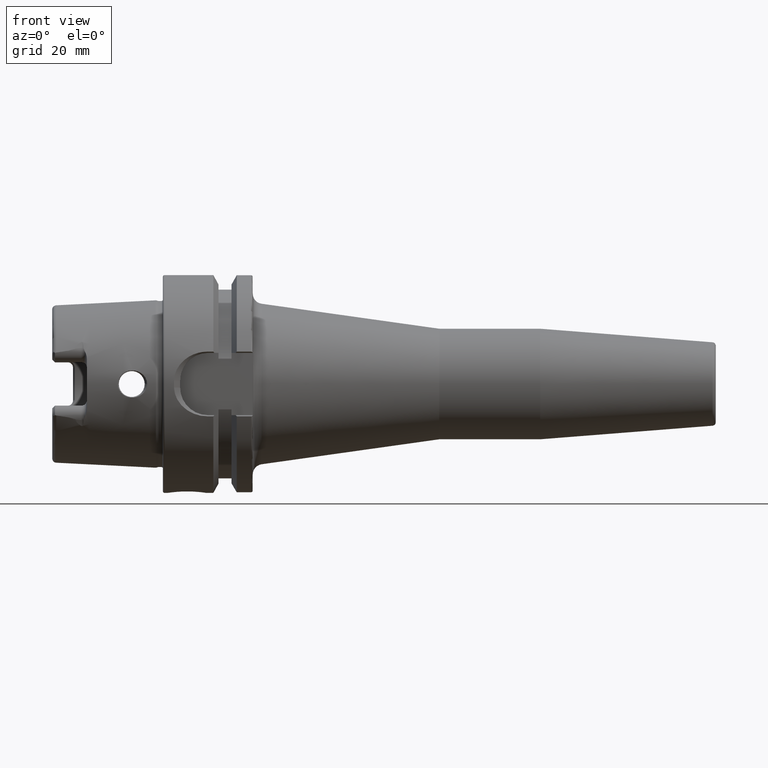
[diagram: clean part render]
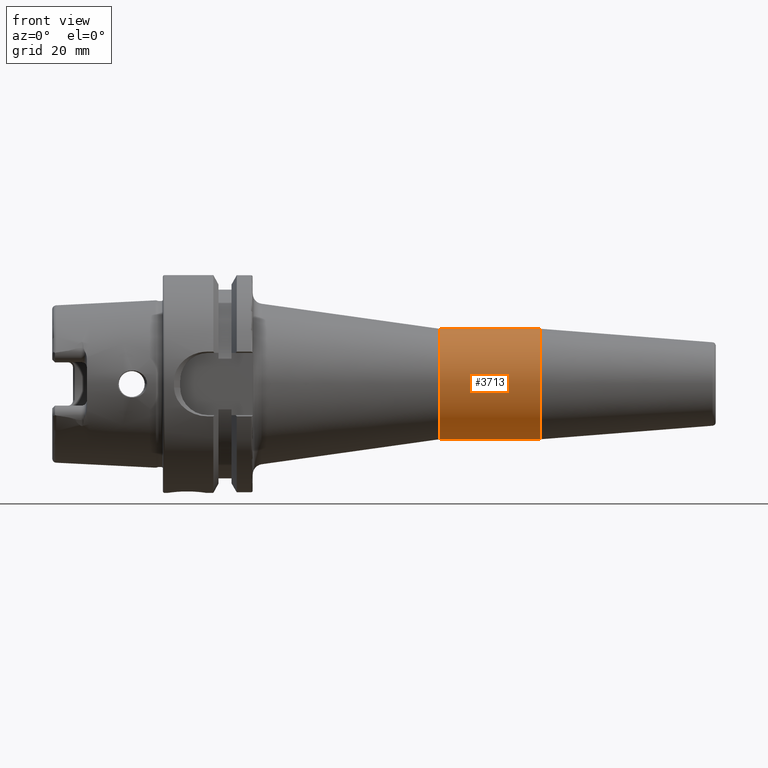
[diagram: same view with one face highlighted and labeled with its STEP entity id]
A machine part, front view. The second image highlights one B-rep face of the part: STEP entity #3713.
In plain terms, the highlighted cylindrical surface (partial cylindrical patch) has radius 16 mm, axis along (1, 0, 0).
Its self-contained STEP definition (entity closure, byte-faithful):
#607=DIRECTION('',(-1.E0,0.E0,0.E0));
#608=VECTOR('',#607,2.917518105530E1);
#609=CARTESIAN_POINT('',(1.091751810553E2,0.E0,-1.6E1));
#610=LINE('',#609,#608);
#611=DIRECTION('',(-1.E0,0.E0,0.E0));
#612=VECTOR('',#611,2.917518105530E1);
#613=CARTESIAN_POINT('',(1.091751810553E2,0.E0,1.6E1));
#614=LINE('',#613,#612);
#615=CARTESIAN_POINT('',(1.091751810553E2,0.E0,0.E0));
#616=DIRECTION('',(-1.E0,0.E0,0.E0));
#617=DIRECTION('',(0.E0,0.E0,-1.E0));
#618=AXIS2_PLACEMENT_3D('',#615,#616,#617);
#638=CARTESIAN_POINT('',(8.E1,0.E0,0.E0));
#639=DIRECTION('',(-1.E0,0.E0,0.E0));
#640=DIRECTION('',(0.E0,0.E0,-1.E0));
#641=AXIS2_PLACEMENT_3D('',#638,#639,#640);
#2976=CARTESIAN_POINT('',(1.091751810553E2,0.E0,-1.6E1));
#2977=VERTEX_POINT('',#2976);
#2978=CARTESIAN_POINT('',(8.E1,0.E0,-1.6E1));
#2979=VERTEX_POINT('',#2978);
#3000=CARTESIAN_POINT('',(1.091751810553E2,0.E0,1.6E1));
#3001=VERTEX_POINT('',#3000);
#3002=CARTESIAN_POINT('',(8.E1,0.E0,1.6E1));
#3003=VERTEX_POINT('',#3002);
#3699=CARTESIAN_POINT('',(1.93E1,0.E0,0.E0));
#3700=DIRECTION('',(1.E0,0.E0,0.E0));
#3701=DIRECTION('',(0.E0,0.E0,1.E0));
#3702=AXIS2_PLACEMENT_3D('',#3699,#3700,#3701);
#3703=CYLINDRICAL_SURFACE('',#3702,1.6E1);
#3705=ORIENTED_EDGE('',*,*,#3704,.T.);
#3707=ORIENTED_EDGE('',*,*,#3706,.T.);
#3709=ORIENTED_EDGE('',*,*,#3708,.F.);
#3710=ORIENTED_EDGE('',*,*,#3692,.F.);
#3711=EDGE_LOOP('',(#3705,#3707,#3709,#3710));
#3712=FACE_OUTER_BOUND('',#3711,.F.);
#3713=ADVANCED_FACE('',(#3712),#3703,.T.);
#619=CIRCLE('',#618,1.6E1);
#642=CIRCLE('',#641,1.6E1);
#3692=EDGE_CURVE('',#2977,#3001,#619,.T.);
#3704=EDGE_CURVE('',#2977,#2979,#610,.T.);
#3706=EDGE_CURVE('',#2979,#3003,#642,.T.);
#3708=EDGE_CURVE('',#3001,#3003,#614,.T.);